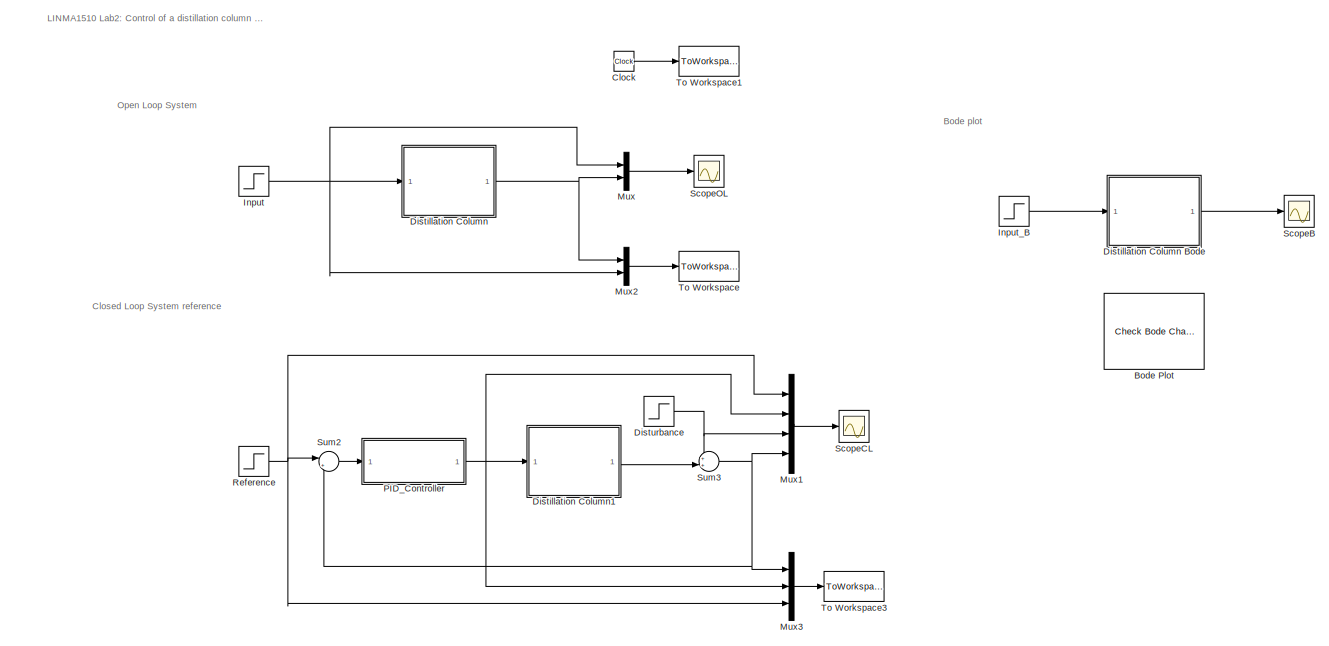
[diagram: root canvas - part 1/3, full width, top band]
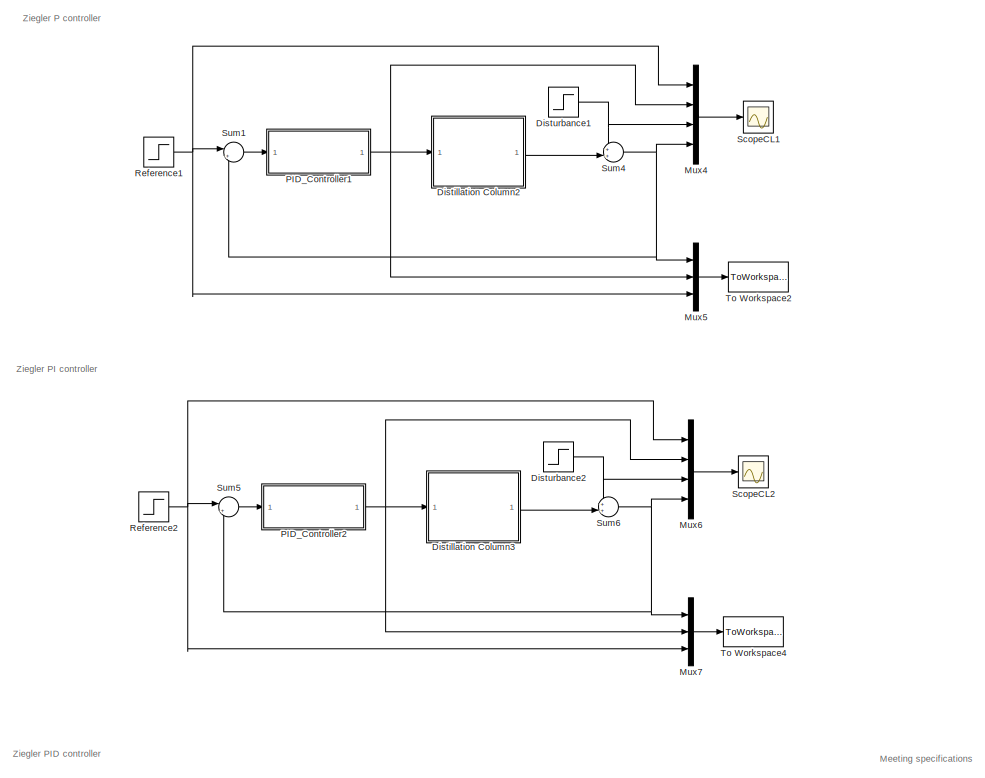
[diagram: root canvas - part 2/3, central region]
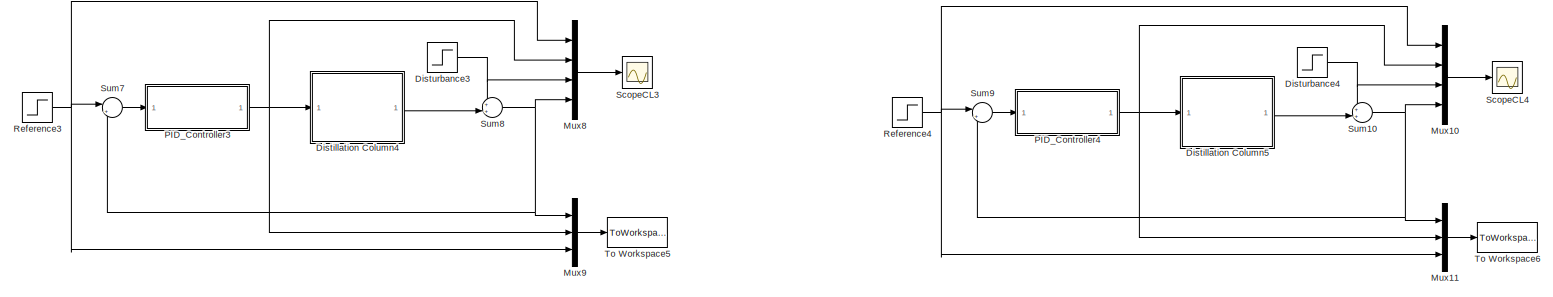
[diagram: root canvas - part 3/3, full width, bottom band]
MODEL slx_dfaae5dfe321
KIND model
CONFIG AbsTol = auto
CONFIG EnableMultiTasking = off
CONFIG FixedStep = auto
CONFIG MaxStep = auto
CONFIG MinStep = auto
CONFIG RelTol = 1e-3
CONFIG SampleTimeConstraint = Unconstrained
CONFIG Solver = VariableStepAuto
CONFIG SolverName = VariableStepAuto
CONFIG StartTime = 0.0
CONFIG StopTime = 50
BLOCK [Reference] Bode Plot  REF=slctrlblks/Model Verification/Check Bode 
Characteristics
  InstantiateOnLoad = on
  Ports = []
  SourceBlock = slctrlblks/Model Verification/Check Bode \nCharacteristics
  SourceProductBaseCode = SD
  SourceProductName = Simulink Control Design
  SourceType = Checks_Bode
BLOCK [Clock] Clock
BLOCK [ModelReference] Distillation Column
  CopyOfModelProtected = on
  ModelNameDialog = distillation_column
  ModelReferenceVersion = 1.1
  Ports = [1, 1]
BLOCK [ModelReference] Distillation Column Bode
  CopyOfModelProtected = on
  ModelNameDialog = bode
  ModelReferenceVersion = 1.2
  Ports = [1, 1]
BLOCK [ModelReference] Distillation Column1
  CopyOfModelProtected = on
  ModelNameDialog = distillation_column
  ModelReferenceVersion = 1.1
  Ports = [1, 1]
BLOCK [ModelReference] Distillation Column2
  CopyOfModelProtected = on
  ModelNameDialog = distillation_column
  ModelReferenceVersion = 1.1
  Ports = [1, 1]
BLOCK [ModelReference] Distillation Column3
  CopyOfModelProtected = on
  ModelNameDialog = distillation_column
  ModelReferenceVersion = 1.1
  Ports = [1, 1]
BLOCK [ModelReference] Distillation Column4
  CopyOfModelProtected = on
  ModelNameDialog = distillation_column
  ModelReferenceVersion = 1.1
  Ports = [1, 1]
BLOCK [ModelReference] Distillation Column5
  CopyOfModelProtected = on
  ModelNameDialog = distillation_column
  ModelReferenceVersion = 1.1
  Ports = [1, 1]
BLOCK [Step] Disturbance
  After = 0.5
  SampleTime = 0
  Time = 15
BLOCK [Step] Disturbance1
  After = 0.5
  SampleTime = 0
  Time = 15
BLOCK [Step] Disturbance2
  After = 0.5
  SampleTime = 0
  Time = 15
BLOCK [Step] Disturbance3
  After = 0.5
  SampleTime = 0
  Time = 15
BLOCK [Step] Disturbance4
  After = 0
  SampleTime = 0
  Time = 0
BLOCK [Step] Input
  SampleTime = 0
  Time = 0
BLOCK [Step] Input_B
  SampleTime = 0
  Time = 0
BLOCK [Mux] Mux
  DisplayOption = bar
  Inputs = 2
  Ports = [2, 1]
BLOCK [Mux] Mux1
  DisplayOption = bar
  Ports = [4, 1]
BLOCK [Mux] Mux10
  DisplayOption = bar
  Ports = [4, 1]
BLOCK [Mux] Mux11
  DisplayOption = bar
  Inputs = 3
  Ports = [3, 1]
BLOCK [Mux] Mux2
  DisplayOption = bar
  Inputs = 2
  Ports = [2, 1]
BLOCK [Mux] Mux3
  DisplayOption = bar
  Inputs = 3
  Ports = [3, 1]
BLOCK [Mux] Mux4
  DisplayOption = bar
  Ports = [4, 1]
BLOCK [Mux] Mux5
  DisplayOption = bar
  Inputs = 3
  Ports = [3, 1]
BLOCK [Mux] Mux6
  DisplayOption = bar
  Ports = [4, 1]
BLOCK [Mux] Mux7
  DisplayOption = bar
  Inputs = 3
  Ports = [3, 1]
BLOCK [Mux] Mux8
  DisplayOption = bar
  Ports = [4, 1]
BLOCK [Mux] Mux9
  DisplayOption = bar
  Inputs = 3
  Ports = [3, 1]
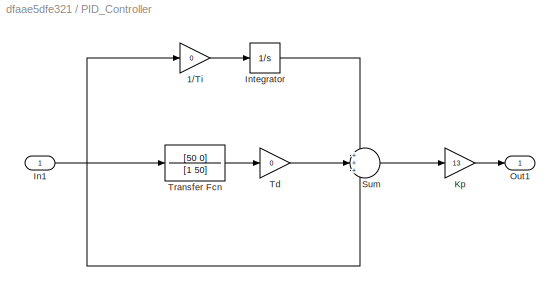
BLOCK [SubSystem] PID_Controller
  Ports = [1, 1]
  RequestExecContextInheritance = off
BLOCK [Gain] PID_Controller/1//Ti
  Gain = 0
  OutDataTypeStr = Inherit: Inherit via internal rule
  ParamDataTypeStr = Inherit: Inherit via internal rule
  SaturateOnIntegerOverflow = off
BLOCK [Inport] PID_Controller/In1
  IconDisplay = Port number
BLOCK [Integrator] PID_Controller/Integrator
  Ports = [1, 1]
BLOCK [Gain] PID_Controller/Kp
  Gain = 13
  OutDataTypeStr = Inherit: Inherit via internal rule
  ParamDataTypeStr = Inherit: Inherit via internal rule
  SaturateOnIntegerOverflow = off
BLOCK [Outport] PID_Controller/Out1
  IconDisplay = Port number
BLOCK [Sum] PID_Controller/Sum
  IconShape = round
  InputSameDT = off
  Inputs = +++
  OutDataTypeStr = Inherit: Inherit via internal rule
  Ports = [3, 1]
  SaturateOnIntegerOverflow = off
BLOCK [Gain] PID_Controller/Td
  Gain = 0
  OutDataTypeStr = Inherit: Inherit via internal rule
  ParamDataTypeStr = Inherit: Inherit via internal rule
  SaturateOnIntegerOverflow = off
BLOCK [TransferFcn] PID_Controller/Transfer Fcn
  Denominator = [1 50]
  Numerator = [50 0]
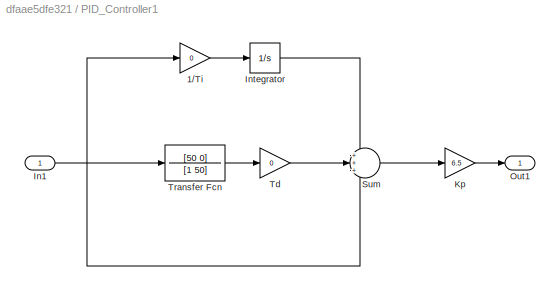
BLOCK [SubSystem] PID_Controller1
  Ports = [1, 1]
  RequestExecContextInheritance = off
BLOCK [Gain] PID_Controller1/1//Ti
  Gain = 0
  OutDataTypeStr = Inherit: Inherit via internal rule
  ParamDataTypeStr = Inherit: Inherit via internal rule
  SaturateOnIntegerOverflow = off
BLOCK [Inport] PID_Controller1/In1
  IconDisplay = Port number
BLOCK [Integrator] PID_Controller1/Integrator
  Ports = [1, 1]
BLOCK [Gain] PID_Controller1/Kp
  Gain = 6.5
  OutDataTypeStr = Inherit: Inherit via internal rule
  ParamDataTypeStr = Inherit: Inherit via internal rule
  SaturateOnIntegerOverflow = off
BLOCK [Outport] PID_Controller1/Out1
  IconDisplay = Port number
BLOCK [Sum] PID_Controller1/Sum
  IconShape = round
  InputSameDT = off
  Inputs = +++
  OutDataTypeStr = Inherit: Inherit via internal rule
  Ports = [3, 1]
  SaturateOnIntegerOverflow = off
BLOCK [Gain] PID_Controller1/Td
  Gain = 0
  OutDataTypeStr = Inherit: Inherit via internal rule
  ParamDataTypeStr = Inherit: Inherit via internal rule
  SaturateOnIntegerOverflow = off
BLOCK [TransferFcn] PID_Controller1/Transfer Fcn
  Denominator = [1 50]
  Numerator = [50 0]
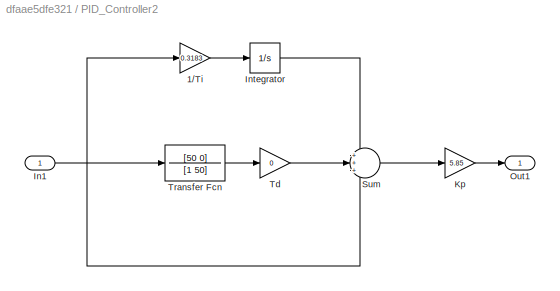
BLOCK [SubSystem] PID_Controller2
  Ports = [1, 1]
  RequestExecContextInheritance = off
BLOCK [Gain] PID_Controller2/1//Ti
  Gain = 0.3183
  OutDataTypeStr = Inherit: Inherit via internal rule
  ParamDataTypeStr = Inherit: Inherit via internal rule
  SaturateOnIntegerOverflow = off
BLOCK [Inport] PID_Controller2/In1
  IconDisplay = Port number
BLOCK [Integrator] PID_Controller2/Integrator
  Ports = [1, 1]
BLOCK [Gain] PID_Controller2/Kp
  Gain = 5.85
  OutDataTypeStr = Inherit: Inherit via internal rule
  ParamDataTypeStr = Inherit: Inherit via internal rule
  SaturateOnIntegerOverflow = off
BLOCK [Outport] PID_Controller2/Out1
  IconDisplay = Port number
BLOCK [Sum] PID_Controller2/Sum
  IconShape = round
  InputSameDT = off
  Inputs = +++
  OutDataTypeStr = Inherit: Inherit via internal rule
  Ports = [3, 1]
  SaturateOnIntegerOverflow = off
BLOCK [Gain] PID_Controller2/Td
  Gain = 0
  OutDataTypeStr = Inherit: Inherit via internal rule
  ParamDataTypeStr = Inherit: Inherit via internal rule
  SaturateOnIntegerOverflow = off
BLOCK [TransferFcn] PID_Controller2/Transfer Fcn
  Denominator = [1 50]
  Numerator = [50 0]
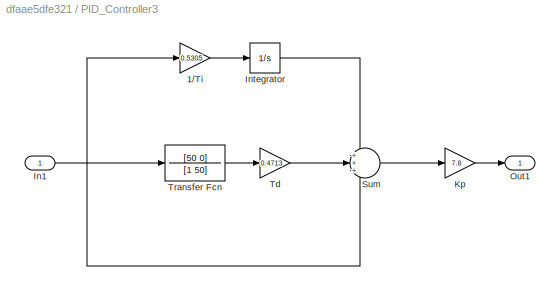
BLOCK [SubSystem] PID_Controller3
  Ports = [1, 1]
  RequestExecContextInheritance = off
BLOCK [Gain] PID_Controller3/1//Ti
  Gain = 0.5305
  OutDataTypeStr = Inherit: Inherit via internal rule
  ParamDataTypeStr = Inherit: Inherit via internal rule
  SaturateOnIntegerOverflow = off
BLOCK [Inport] PID_Controller3/In1
  IconDisplay = Port number
BLOCK [Integrator] PID_Controller3/Integrator
  Ports = [1, 1]
BLOCK [Gain] PID_Controller3/Kp
  Gain = 7.8
  OutDataTypeStr = Inherit: Inherit via internal rule
  ParamDataTypeStr = Inherit: Inherit via internal rule
  SaturateOnIntegerOverflow = off
BLOCK [Outport] PID_Controller3/Out1
  IconDisplay = Port number
BLOCK [Sum] PID_Controller3/Sum
  IconShape = round
  InputSameDT = off
  Inputs = +++
  OutDataTypeStr = Inherit: Inherit via internal rule
  Ports = [3, 1]
  SaturateOnIntegerOverflow = off
BLOCK [Gain] PID_Controller3/Td
  Gain = 0.4713
  OutDataTypeStr = Inherit: Inherit via internal rule
  ParamDataTypeStr = Inherit: Inherit via internal rule
  SaturateOnIntegerOverflow = off
BLOCK [TransferFcn] PID_Controller3/Transfer Fcn
  Denominator = [1 50]
  Numerator = [50 0]
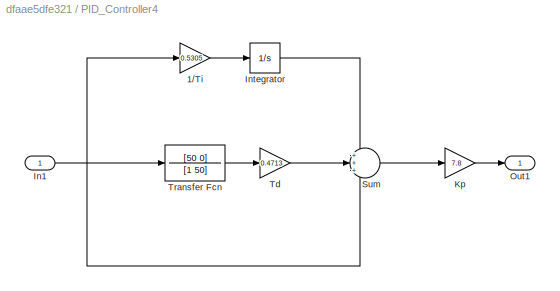
BLOCK [SubSystem] PID_Controller4
  Ports = [1, 1]
  RequestExecContextInheritance = off
BLOCK [Gain] PID_Controller4/1//Ti
  Gain = 0.5305
  OutDataTypeStr = Inherit: Inherit via internal rule
  ParamDataTypeStr = Inherit: Inherit via internal rule
  SaturateOnIntegerOverflow = off
BLOCK [Inport] PID_Controller4/In1
  IconDisplay = Port number
BLOCK [Integrator] PID_Controller4/Integrator
  Ports = [1, 1]
BLOCK [Gain] PID_Controller4/Kp
  Gain = 7.8
  OutDataTypeStr = Inherit: Inherit via internal rule
  ParamDataTypeStr = Inherit: Inherit via internal rule
  SaturateOnIntegerOverflow = off
BLOCK [Outport] PID_Controller4/Out1
  IconDisplay = Port number
BLOCK [Sum] PID_Controller4/Sum
  IconShape = round
  InputSameDT = off
  Inputs = +++
  OutDataTypeStr = Inherit: Inherit via internal rule
  Ports = [3, 1]
  SaturateOnIntegerOverflow = off
BLOCK [Gain] PID_Controller4/Td
  Gain = 0.4713
  OutDataTypeStr = Inherit: Inherit via internal rule
  ParamDataTypeStr = Inherit: Inherit via internal rule
  SaturateOnIntegerOverflow = off
BLOCK [TransferFcn] PID_Controller4/Transfer Fcn
  Denominator = [1 50]
  Numerator = [50 0]
BLOCK [Step] Reference
  SampleTime = 0
BLOCK [Step] Reference1
  SampleTime = 0
BLOCK [Step] Reference2
  SampleTime = 0
BLOCK [Step] Reference3
  SampleTime = 0
BLOCK [Step] Reference4
  SampleTime = 0
BLOCK [Scope] ScopeB
  Floating = off
  NumInputPorts = 1
  Ports = [1]
  ScopeSpecificationString = Simulink.scopes.TimeScopeBlockCfg('CurrentConfiguration', extmgr.ConfigurationSet(extmgr.Configuration('Core','General UI',true),extmgr.Configuration('Core','Source UI',true),extmgr.Configuration('Sources','WiredSimulink',true,'DataLoggingVariableName','ScopeData1'),extmgr.Configuration('Visuals','Time Domain',true,'SerializedDisplays',{struct('MinYLimReal','-0.06458','MaxYLimReal','0.28495','YLab...<+1410ch>
BLOCK [Scope] ScopeCL
  Floating = off
  NumInputPorts = 1
  Ports = [1]
  ScopeSpecificationString = Simulink.scopes.TimeScopeBlockCfg('CurrentConfiguration', extmgr.ConfigurationSet(extmgr.Configuration('Core','General UI',true),extmgr.Configuration('Core','Source UI',true),extmgr.Configuration('Sources','WiredSimulink',true,'DataLoggingVariableName','ScopeData1'),extmgr.Configuration('Visuals','Time Domain',true,'SerializedDisplays',{struct('MinYLimReal','-17.55192','MaxYLimReal','22.94119','YL...<+1818ch>
BLOCK [Scope] ScopeCL1
  Floating = off
  NumInputPorts = 1
  Ports = [1]
  ScopeSpecificationString = Simulink.scopes.TimeScopeBlockCfg('CurrentConfiguration', extmgr.ConfigurationSet(extmgr.Configuration('Core','General UI',true),extmgr.Configuration('Core','Source UI',true),extmgr.Configuration('Sources','WiredSimulink',true,'DataLoggingVariableName','ScopeData1'),extmgr.Configuration('Visuals','Time Domain',true,'SerializedDisplays',{struct('MinYLimReal','-17.55192','MaxYLimReal','22.94119','YL...<+1818ch>
BLOCK [Scope] ScopeCL2
  Floating = off
  NumInputPorts = 1
  Ports = [1]
  ScopeSpecificationString = Simulink.scopes.TimeScopeBlockCfg('CurrentConfiguration', extmgr.ConfigurationSet(extmgr.Configuration('Core','General UI',true),extmgr.Configuration('Core','Source UI',true),extmgr.Configuration('Sources','WiredSimulink',true,'DataLoggingVariableName','ScopeData2'),extmgr.Configuration('Visuals','Time Domain',true,'SerializedDisplays',{struct('MinYLimReal','-17.55192','MaxYLimReal','22.94119','YL...<+1821ch>
BLOCK [Scope] ScopeCL3
  Floating = off
  NumInputPorts = 1
  Ports = [1]
  ScopeSpecificationString = Simulink.scopes.TimeScopeBlockCfg('CurrentConfiguration', extmgr.ConfigurationSet(extmgr.Configuration('Core','General UI',true),extmgr.Configuration('Core','Source UI',true),extmgr.Configuration('Sources','WiredSimulink',true,'DataLoggingVariableName','ScopeData3'),extmgr.Configuration('Visuals','Time Domain',true,'SerializedDisplays',{struct('MinYLimReal','-28.6829','MaxYLimReal','216.9939','YLa...<+1819ch>
BLOCK [Scope] ScopeCL4
  Floating = off
  NumInputPorts = 1
  Ports = [1]
  ScopeSpecificationString = Simulink.scopes.TimeScopeBlockCfg('CurrentConfiguration', extmgr.ConfigurationSet(extmgr.Configuration('Core','General UI',true),extmgr.Configuration('Core','Source UI',true),extmgr.Configuration('Sources','WiredSimulink',true,'DataLoggingVariableName','ScopeData4'),extmgr.Configuration('Visuals','Time Domain',true,'SerializedDisplays',{struct('MinYLimReal','-5.76934','MaxYLimReal','6.70432','YLab...<+1843ch>
BLOCK [Scope] ScopeOL
  Floating = off
  NumInputPorts = 1
  Ports = [1]
  ScopeSpecificationString = Simulink.scopes.TimeScopeBlockCfg('CurrentConfiguration', extmgr.ConfigurationSet(extmgr.Configuration('Core','General UI',true),extmgr.Configuration('Core','Source UI',true),extmgr.Configuration('Sources','WiredSimulink',true),extmgr.Configuration('Visuals','Time Domain',true,'SerializedDisplays',{struct('MinYLimReal','-0.18494','MaxYLimReal','1.13166','YLabelReal','','MinYLimMag','0.00000','MaxY...<+1727ch>
BLOCK [Sum] Sum1
  IconShape = round
  InputSameDT = off
  Inputs = |+-
  OutDataTypeStr = Inherit: Inherit via internal rule
  Ports = [2, 1]
  SaturateOnIntegerOverflow = off
BLOCK [Sum] Sum10
  IconShape = round
  InputSameDT = off
  Inputs = ++|
  OutDataTypeStr = Inherit: Inherit via internal rule
  Ports = [2, 1]
  SaturateOnIntegerOverflow = off
BLOCK [Sum] Sum2
  IconShape = round
  InputSameDT = off
  Inputs = |+-
  OutDataTypeStr = Inherit: Inherit via internal rule
  Ports = [2, 1]
  SaturateOnIntegerOverflow = off
BLOCK [Sum] Sum3
  IconShape = round
  InputSameDT = off
  Inputs = ++|
  OutDataTypeStr = Inherit: Inherit via internal rule
  Ports = [2, 1]
  SaturateOnIntegerOverflow = off
BLOCK [Sum] Sum4
  IconShape = round
  InputSameDT = off
  Inputs = ++|
  OutDataTypeStr = Inherit: Inherit via internal rule
  Ports = [2, 1]
  SaturateOnIntegerOverflow = off
BLOCK [Sum] Sum5
  IconShape = round
  InputSameDT = off
  Inputs = |+-
  OutDataTypeStr = Inherit: Inherit via internal rule
  Ports = [2, 1]
  SaturateOnIntegerOverflow = off
BLOCK [Sum] Sum6
  IconShape = round
  InputSameDT = off
  Inputs = ++|
  OutDataTypeStr = Inherit: Inherit via internal rule
  Ports = [2, 1]
  SaturateOnIntegerOverflow = off
BLOCK [Sum] Sum7
  IconShape = round
  InputSameDT = off
  Inputs = |+-
  OutDataTypeStr = Inherit: Inherit via internal rule
  Ports = [2, 1]
  SaturateOnIntegerOverflow = off
BLOCK [Sum] Sum8
  IconShape = round
  InputSameDT = off
  Inputs = ++|
  OutDataTypeStr = Inherit: Inherit via internal rule
  Ports = [2, 1]
  SaturateOnIntegerOverflow = off
BLOCK [Sum] Sum9
  IconShape = round
  InputSameDT = off
  Inputs = |+-
  OutDataTypeStr = Inherit: Inherit via internal rule
  Ports = [2, 1]
  SaturateOnIntegerOverflow = off
BLOCK [ToWorkspace] To Workspace
  FixptAsFi = on
  MaxDataPoints = inf
  Ports = [1]
  SampleTime = 0.01
  Save2DSignal = 2-D array (concatenate along first dimension)
  VariableName = simout_OL
BLOCK [ToWorkspace] To Workspace1
  FixptAsFi = on
  MaxDataPoints = inf
  Ports = [1]
  SampleTime = 0.01
  Save2DSignal = 2-D array (concatenate along first dimension)
  VariableName = simout_T
BLOCK [ToWorkspace] To Workspace2
  FixptAsFi = on
  MaxDataPoints = inf
  Ports = [1]
  SampleTime = 0.01
  Save2DSignal = 2-D array (concatenate along first dimension)
  VariableName = simout_CL1
BLOCK [ToWorkspace] To Workspace3
  FixptAsFi = on
  MaxDataPoints = inf
  Ports = [1]
  SampleTime = 0.01
  Save2DSignal = 2-D array (concatenate along first dimension)
  VariableName = simout_CL
BLOCK [ToWorkspace] To Workspace4
  FixptAsFi = on
  MaxDataPoints = inf
  Ports = [1]
  SampleTime = 0.01
  Save2DSignal = 2-D array (concatenate along first dimension)
  VariableName = simout_CL2
BLOCK [ToWorkspace] To Workspace5
  FixptAsFi = on
  MaxDataPoints = inf
  Ports = [1]
  SampleTime = 0.01
  Save2DSignal = 2-D array (concatenate along first dimension)
  VariableName = simout_CL3
BLOCK [ToWorkspace] To Workspace6
  FixptAsFi = on
  MaxDataPoints = inf
  Ports = [1]
  SampleTime = 0.01
  Save2DSignal = 2-D array (concatenate along first dimension)
  VariableName = simout_CL4
ANNOTATION (root): Bode plot
ANNOTATION (root): Closed Loop System reference
ANNOTATION (root): LINMA1510 Lab2: Control of a distillation column 2024-2025
ANNOTATION (root): Meeting specifications
ANNOTATION (root): Open Loop System
ANNOTATION (root): Ziegler P controller
ANNOTATION (root): Ziegler PI controller
ANNOTATION (root): Ziegler PID controller
LINE Clock:1 -> To Workspace1:1
LINE Distillation Column Bode:1 -> ScopeB:1
LINE Distillation Column1:1 -> Sum3:2
LINE Distillation Column2:1 -> Sum4:2
LINE Distillation Column3:1 -> Sum6:2
LINE Distillation Column4:1 -> Sum8:2
LINE Distillation Column5:1 -> Sum10:2
NET Distillation Column:1 -> Mux2:1, Mux:2
NET Disturbance1:1 -> Mux4:3, Sum4:1
NET Disturbance2:1 -> Mux6:3, Sum6:1
NET Disturbance3:1 -> Mux8:3, Sum8:1
NET Disturbance4:1 -> Mux10:3, Sum10:1
NET Disturbance:1 -> Mux1:3, Sum3:1
NET Input:1 -> Distillation Column:1, Mux2:2, Mux:1
LINE Input_B:1 -> Distillation Column Bode:1
LINE Mux10:1 -> ScopeCL4:1
LINE Mux11:1 -> To Workspace6:1
LINE Mux1:1 -> ScopeCL:1
LINE Mux2:1 -> To Workspace:1
LINE Mux3:1 -> To Workspace3:1
LINE Mux4:1 -> ScopeCL1:1
LINE Mux5:1 -> To Workspace2:1
LINE Mux6:1 -> ScopeCL2:1
LINE Mux7:1 -> To Workspace4:1
LINE Mux8:1 -> ScopeCL3:1
LINE Mux9:1 -> To Workspace5:1
LINE Mux:1 -> ScopeOL:1
LINE PID_Controller/1//Ti:1 -> PID_Controller/Integrator:1
NET PID_Controller/In1:1 -> PID_Controller/1//Ti:1, PID_Controller/Sum:3, PID_Controller/Transfer Fcn:1
LINE PID_Controller/Integrator:1 -> PID_Controller/Sum:1
LINE PID_Controller/Kp:1 -> PID_Controller/Out1:1
LINE PID_Controller/Sum:1 -> PID_Controller/Kp:1
LINE PID_Controller/Td:1 -> PID_Controller/Sum:2
LINE PID_Controller/Transfer Fcn:1 -> PID_Controller/Td:1
LINE PID_Controller1/1//Ti:1 -> PID_Controller1/Integrator:1
NET PID_Controller1/In1:1 -> PID_Controller1/1//Ti:1, PID_Controller1/Sum:3, PID_Controller1/Transfer Fcn:1
LINE PID_Controller1/Integrator:1 -> PID_Controller1/Sum:1
LINE PID_Controller1/Kp:1 -> PID_Controller1/Out1:1
LINE PID_Controller1/Sum:1 -> PID_Controller1/Kp:1
LINE PID_Controller1/Td:1 -> PID_Controller1/Sum:2
LINE PID_Controller1/Transfer Fcn:1 -> PID_Controller1/Td:1
NET PID_Controller1:1 -> Distillation Column2:1, Mux4:2, Mux5:2
LINE PID_Controller2/1//Ti:1 -> PID_Controller2/Integrator:1
NET PID_Controller2/In1:1 -> PID_Controller2/1//Ti:1, PID_Controller2/Sum:3, PID_Controller2/Transfer Fcn:1
LINE PID_Controller2/Integrator:1 -> PID_Controller2/Sum:1
LINE PID_Controller2/Kp:1 -> PID_Controller2/Out1:1
LINE PID_Controller2/Sum:1 -> PID_Controller2/Kp:1
LINE PID_Controller2/Td:1 -> PID_Controller2/Sum:2
LINE PID_Controller2/Transfer Fcn:1 -> PID_Controller2/Td:1
NET PID_Controller2:1 -> Distillation Column3:1, Mux6:2, Mux7:2
LINE PID_Controller3/1//Ti:1 -> PID_Controller3/Integrator:1
NET PID_Controller3/In1:1 -> PID_Controller3/1//Ti:1, PID_Controller3/Sum:3, PID_Controller3/Transfer Fcn:1
LINE PID_Controller3/Integrator:1 -> PID_Controller3/Sum:1
LINE PID_Controller3/Kp:1 -> PID_Controller3/Out1:1
LINE PID_Controller3/Sum:1 -> PID_Controller3/Kp:1
LINE PID_Controller3/Td:1 -> PID_Controller3/Sum:2
LINE PID_Controller3/Transfer Fcn:1 -> PID_Controller3/Td:1
NET PID_Controller3:1 -> Distillation Column4:1, Mux8:2, Mux9:2
LINE PID_Controller4/1//Ti:1 -> PID_Controller4/Integrator:1
NET PID_Controller4/In1:1 -> PID_Controller4/1//Ti:1, PID_Controller4/Sum:3, PID_Controller4/Transfer Fcn:1
LINE PID_Controller4/Integrator:1 -> PID_Controller4/Sum:1
LINE PID_Controller4/Kp:1 -> PID_Controller4/Out1:1
LINE PID_Controller4/Sum:1 -> PID_Controller4/Kp:1
LINE PID_Controller4/Td:1 -> PID_Controller4/Sum:2
LINE PID_Controller4/Transfer Fcn:1 -> PID_Controller4/Td:1
NET PID_Controller4:1 -> Distillation Column5:1, Mux10:2, Mux11:2
NET PID_Controller:1 -> Distillation Column1:1, Mux1:2, Mux3:2
NET Reference1:1 -> Mux4:1, Mux5:3, Sum1:1
NET Reference2:1 -> Mux6:1, Mux7:3, Sum5:1
NET Reference3:1 -> Mux8:1, Mux9:3, Sum7:1
NET Reference4:1 -> Mux10:1, Mux11:3, Sum9:1
NET Reference:1 -> Mux1:1, Mux3:3, Sum2:1
NET Sum10:1 -> Mux10:4, Mux11:1, Sum9:2
LINE Sum1:1 -> PID_Controller1:1
LINE Sum2:1 -> PID_Controller:1
NET Sum3:1 -> Mux1:4, Mux3:1, Sum2:2
NET Sum4:1 -> Mux4:4, Mux5:1, Sum1:2
LINE Sum5:1 -> PID_Controller2:1
NET Sum6:1 -> Mux6:4, Mux7:1, Sum5:2
LINE Sum7:1 -> PID_Controller3:1
NET Sum8:1 -> Mux8:4, Mux9:1, Sum7:2
LINE Sum9:1 -> PID_Controller4:1
note: NET lines group one-source signal fan-out (src -> all destinations, sorted); 1:1 wires keep LINE
